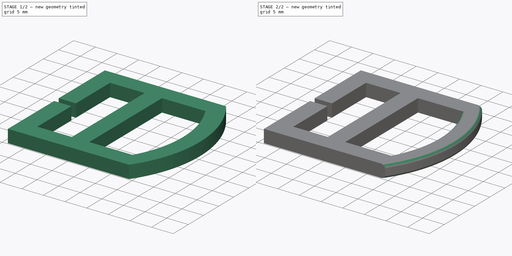
[diagram: build sequence overview — one tinted view per stage of 2, left to right]
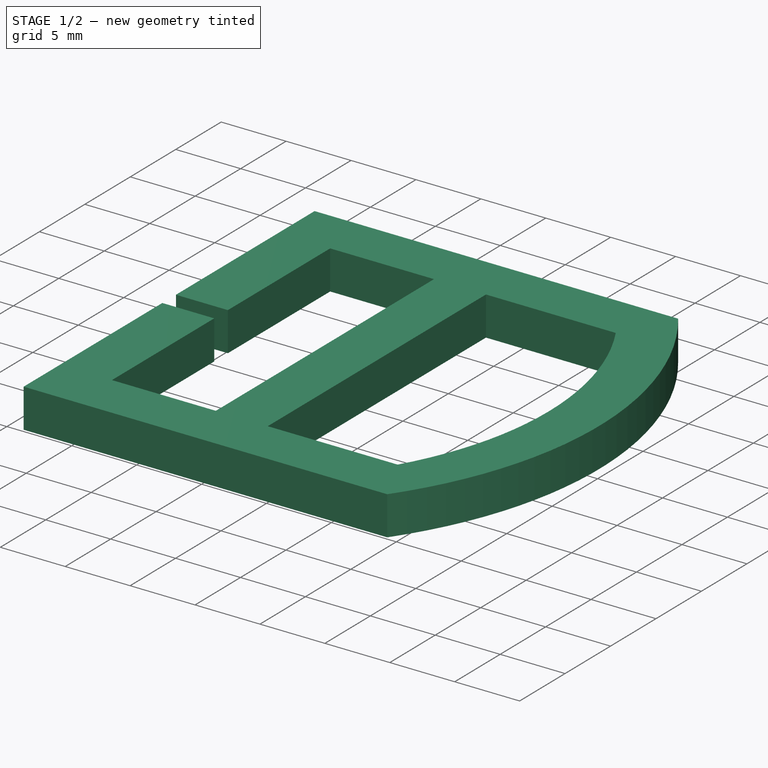
[diagram: stage 1 of 2 — iso view after this stage's code; geometry added in this stage tinted green]
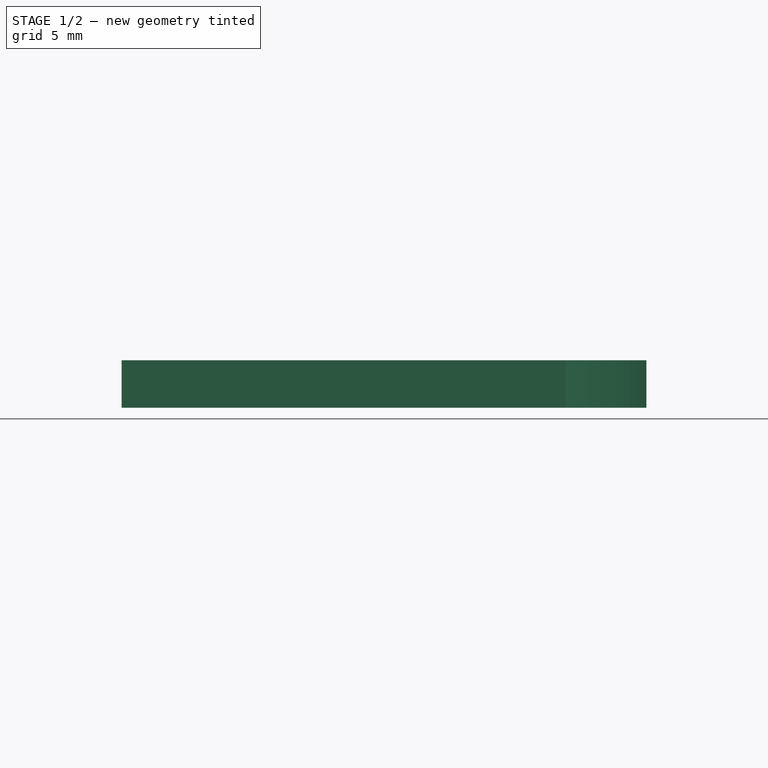
[diagram: stage 1 of 2 — front view after this stage's code; geometry added in this stage tinted green]
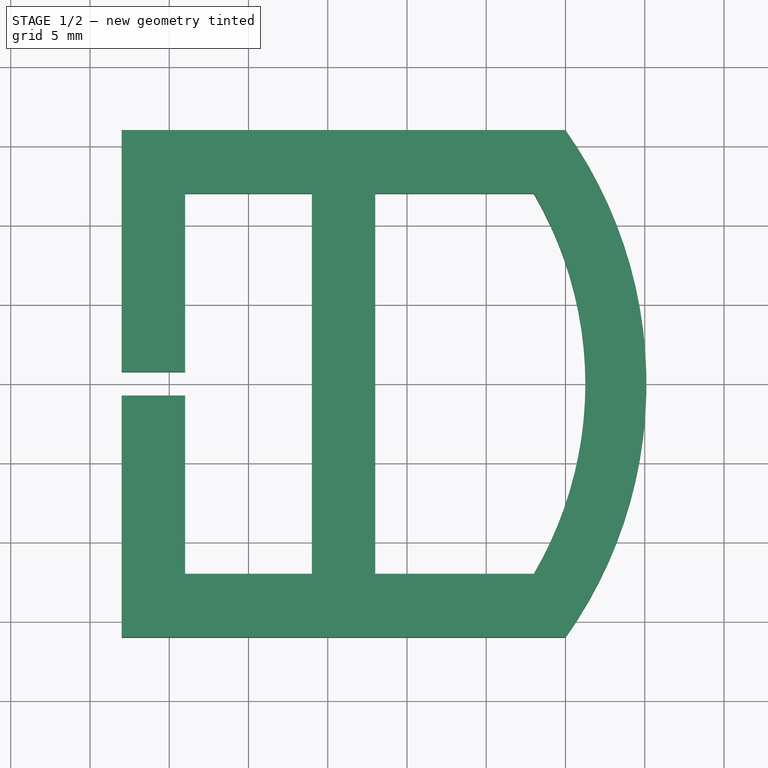
[diagram: stage 1 of 2 — top view after this stage's code; geometry added in this stage tinted green]
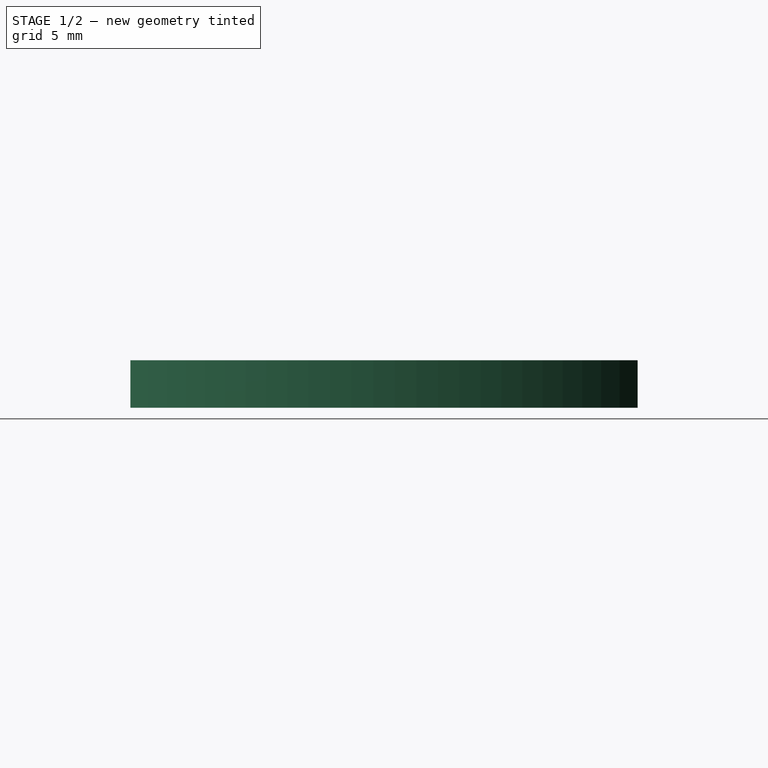
[diagram: stage 1 of 2 — right view after this stage's code; geometry added in this stage tinted green]
FCSTD DOCUMENT  (FreeCAD 0.20RUnknown)
Label: DDlock
License: All rights reserved
LicenseURL: http://en.wikipedia.org/wiki/All_rights_reserved
objects: Sketcher::SketchObject×1, PartDesign::Pad×1, PartDesign::Fillet×1, PartDesign::Body×1
note: 6 computed .brp shape members not serialized (recipe doc carries the construction recipe); baked Part::Feature solids carry a one-line shape summary decoded from their .brp

FEATURE [Sketcher::SketchObject] Sketch
  FullyConstrained = true
  MapMode = 5
  Support = -> [XY_Plane]
  sketch-geometry (16):
    g0: LineSegment StartX=-4 StartY=12 StartZ=0 EndX=4 EndY=12 EndZ=0
    g1: LineSegment StartX=4 StartY=12 StartZ=0 EndX=4 EndY=-12 EndZ=0
    g2: LineSegment StartX=4 StartY=-12 StartZ=0 EndX=-4 EndY=-12 EndZ=0
    g3: LineSegment StartX=20 StartY=16 StartZ=0 EndX=-8 EndY=16 EndZ=0
    g4: LineSegment StartX=-8 StartY=-16 StartZ=0 EndX=20 EndY=-16 EndZ=0
    g5: LineSegment StartX=-8 StartY=16 StartZ=0 EndX=-8 EndY=0.75 EndZ=0
    g6: LineSegment StartX=-8 StartY=0.75 StartZ=0 EndX=-4 EndY=0.75 EndZ=0
    g7: LineSegment StartX=-4 StartY=0.75 StartZ=0 EndX=-4 EndY=12 EndZ=0
    g8: LineSegment StartX=-8 StartY=-16 StartZ=0 EndX=-8 EndY=-0.75 EndZ=0
    g9: LineSegment StartX=-8 StartY=-0.75 StartZ=0 EndX=-4 EndY=-0.75 EndZ=0
    g10: LineSegment StartX=-4 StartY=-0.75 StartZ=0 EndX=-4 EndY=-12 EndZ=0
    g11: ArcOfCircle CenterX=-2.5 CenterY=-3.0713e-12 CenterZ=0 NormalX=0 NormalY=0 NormalZ=1 AngleXU=0 Radius=27.6089 StartAngle=5.66504 EndAngle=6.90133
    g12: LineSegment StartX=8 StartY=12 StartZ=0 EndX=8 EndY=-12 EndZ=0
    g13: LineSegment StartX=8 StartY=-12 StartZ=0 EndX=18 EndY=-12 EndZ=0
    g14: LineSegment StartX=8 StartY=12 StartZ=0 EndX=18 EndY=12 EndZ=0
    g15: ArcOfCircle CenterX=-2.5 CenterY=-3.0713e-12 CenterZ=0 NormalX=0 NormalY=0 NormalZ=1 AngleXU=0 Radius=23.7539 StartAngle=5.7536 EndAngle=6.81277
  constraints (42):
    c: Coincident(g0,g1)
    c: Coincident(g1,g2)
    c: Horizontal(g2)
    c: Vertical(g1)
    c: Horizontal(g3)
    c: Horizontal(g4)
    c: DistanceY(g2,g0) = 24
    c: Symmetric(g0,g2,g-1)
    c: Symmetric(g3,g4,g-1)
    c: Coincident(g5,g3)
    c: Vertical(g5)
    c: Coincident(g6,g5)
    c: Coincident(g7,g6)
    c: Coincident(g7,g0)
    c: Vertical(g7)
    c: Coincident(g8,g4)
    c: Coincident(g9,g8)
    c: Horizontal(g9)
    c: Coincident(g10,g9)
    c: Coincident(g10,g2)
    c: Symmetric(g5,g8,g-1)
    c: Symmetric(g6,g9,g-1)
    c: DistanceY(g8,g5) = 1.5
    c: DistanceX(g3,g0) = 4
    c: DistanceY(g0,g3) = 4
    c: Coincident(g11,g3)
    c: Coincident(g11,g4)
    c: Coincident(g13,g12)
    c: Horizontal(g13)
    c: Coincident(g14,g12)
    c: Symmetric(g12,g12,g-1)
    c: Symmetric(g14,g13,g-1)
    c: Equal(g12,g1)
    c: Symmetric(g0,g0,g-2)
    c: DistanceX(g2,g1) = 8
    c: Coincident(g15,g11)
    c: Coincident(g15,g14)
    c: Coincident(g15,g13)
    c: DistanceX(g14,g3) = 2
    c: DistanceX(g12,g13) = 10
    c: DistanceX(g1,g12) = 4
    c: DistanceX(g11,g-1) = 2.5
FEATURE [PartDesign::Pad] Pad
  Direction = (0,0,1)
  Length = 3
  Length2 = 10
  Profile = -> Sketch
  ReferenceAxis = -> Sketch [N_Axis]
  Type = 0
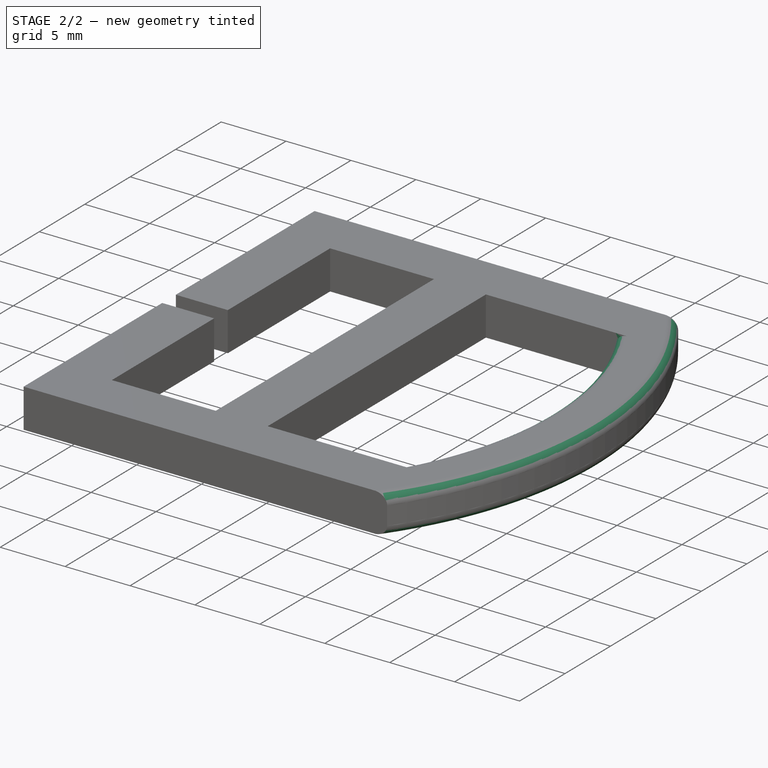
[diagram: stage 2 of 2 — iso view after this stage's code; geometry added in this stage tinted green]
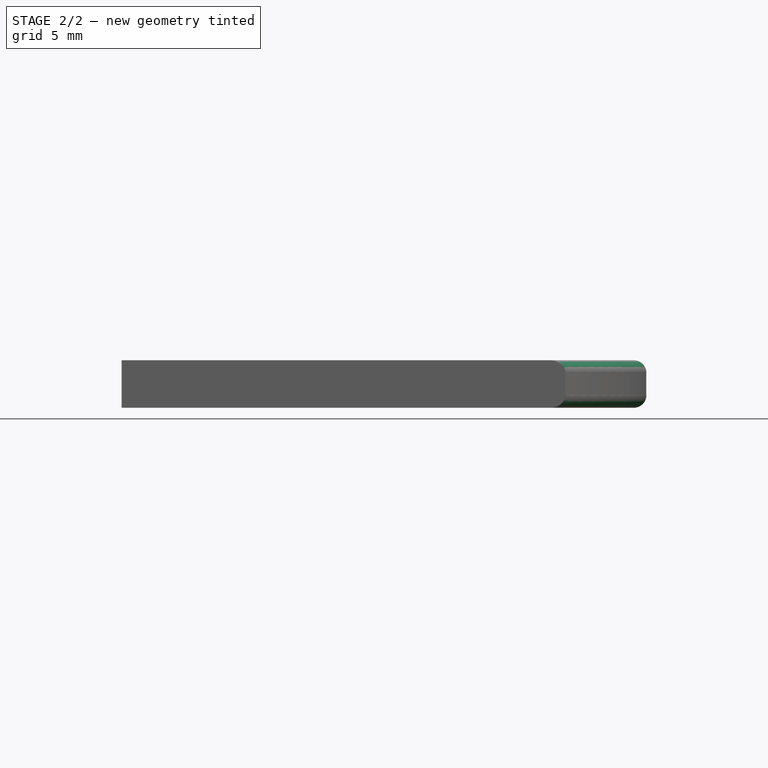
[diagram: stage 2 of 2 — front view after this stage's code; geometry added in this stage tinted green]
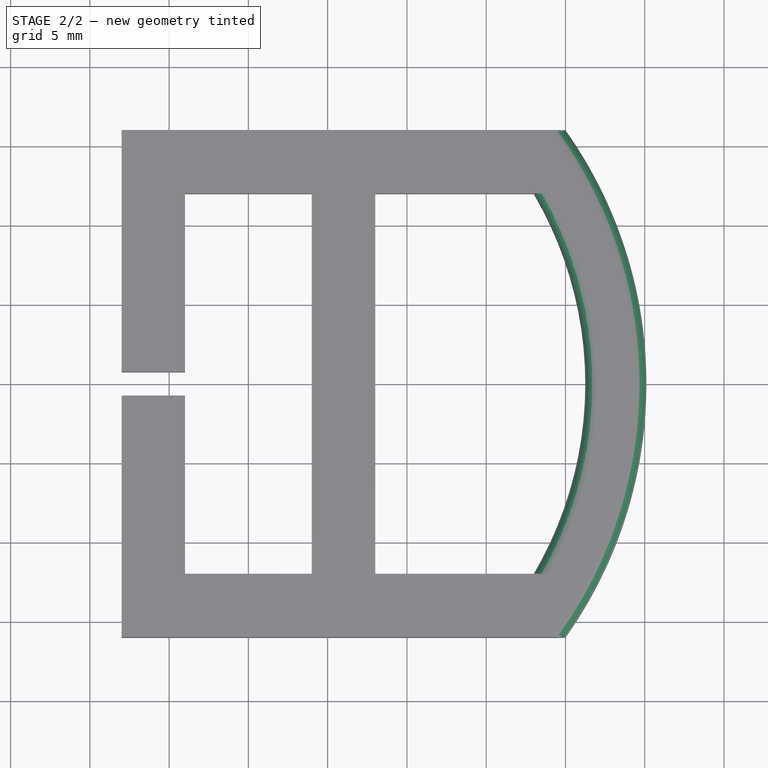
[diagram: stage 2 of 2 — top view after this stage's code; geometry added in this stage tinted green]
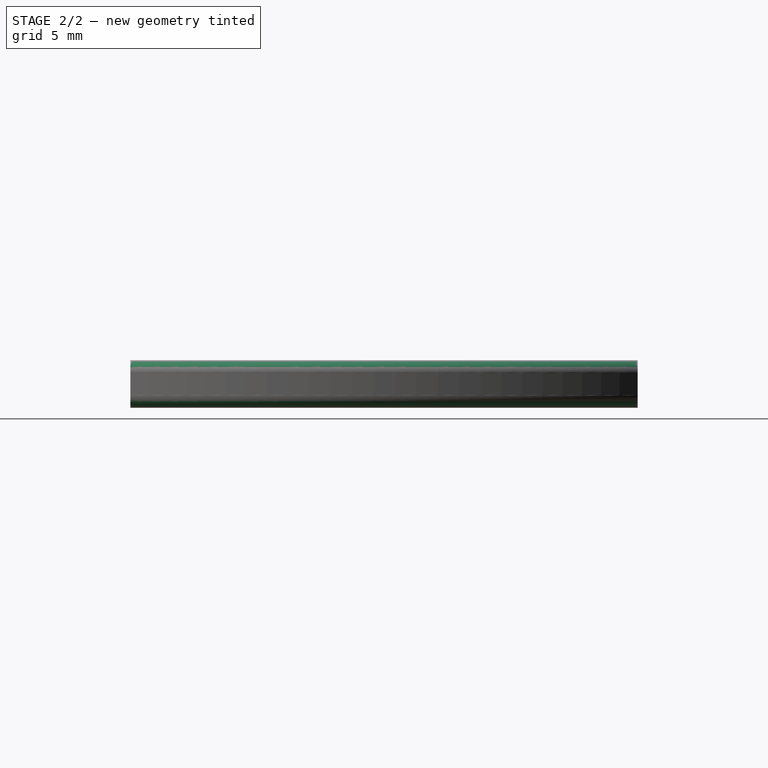
[diagram: stage 2 of 2 — right view after this stage's code; geometry added in this stage tinted green]
FEATURE [PartDesign::Fillet] Fillet
  Base = -> Pad [Edge46,Edge7,Edge6,Edge45]
  BaseFeature = -> Pad
  Radius = 0.8
  SupportTransform = false
  UseAllEdges = false
FEATURE [PartDesign::Body] Body
  Group = -> [Sketch,Pad,Fillet]
  Origin = -> Origin
  Tip = -> Fillet
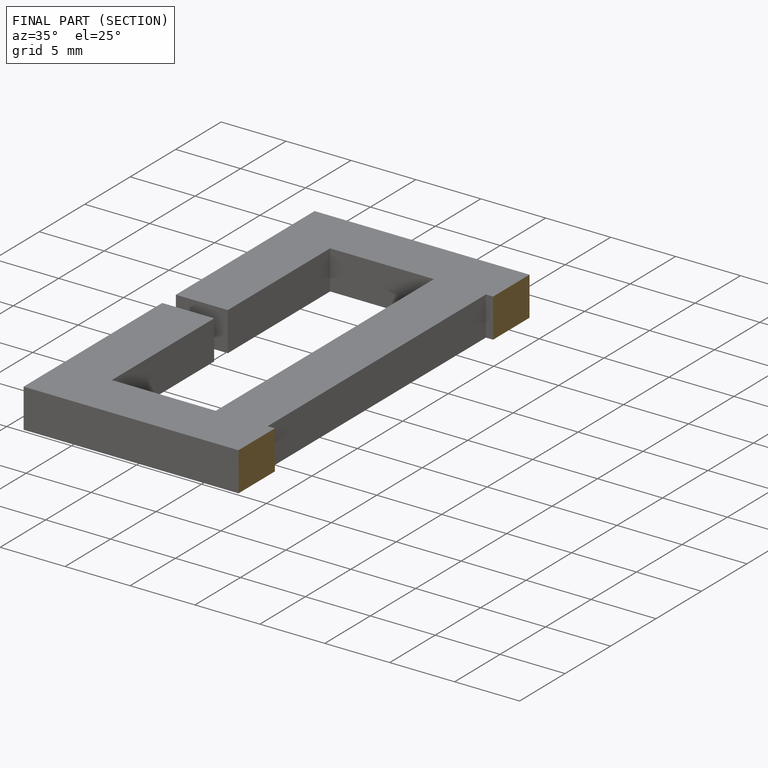
[diagram: finished part — half-section view (interior)]
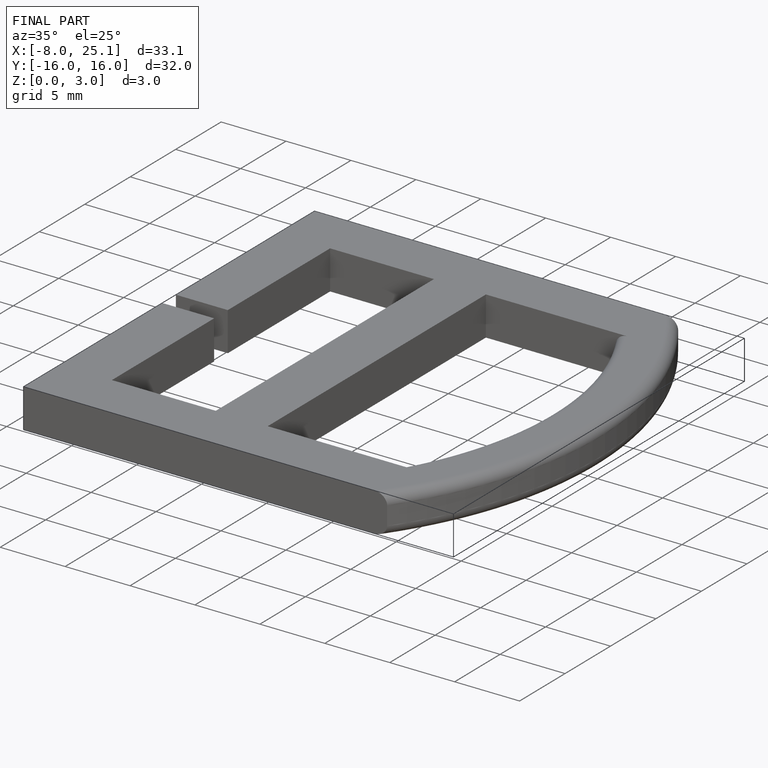
[diagram: finished part — iso view with bounding-box wireframe]
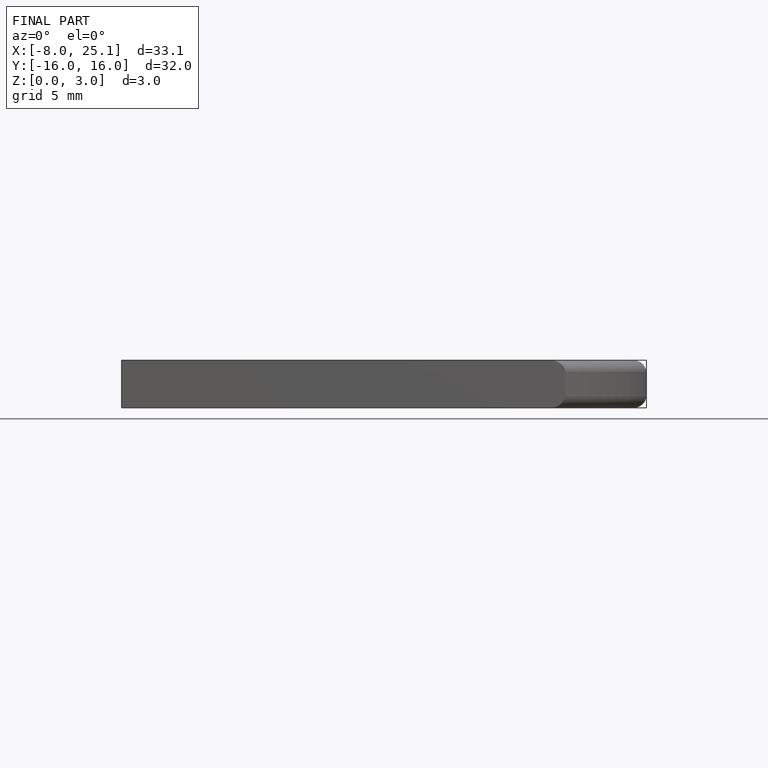
[diagram: finished part — front view with bounding-box wireframe]
